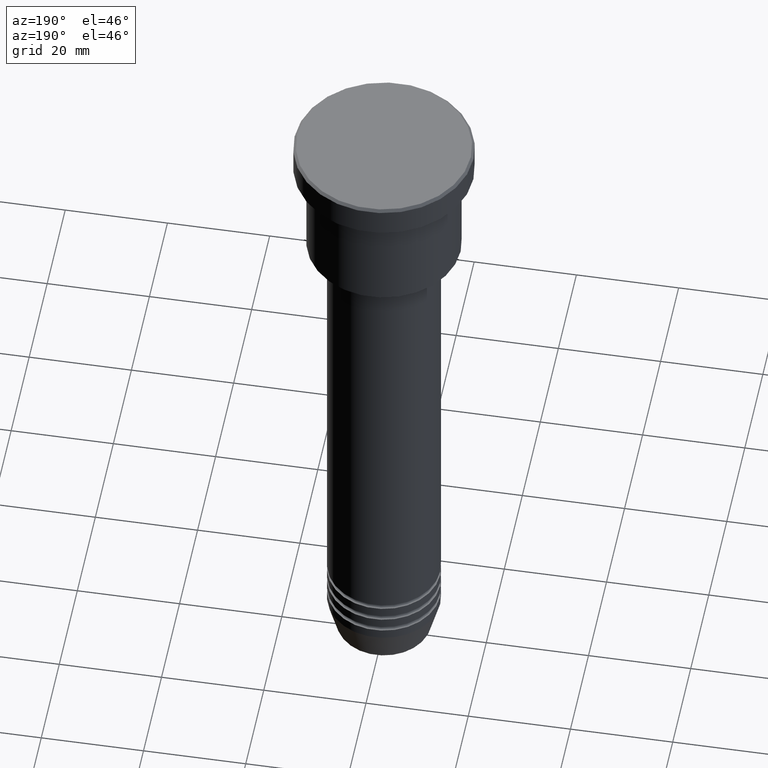
[diagram: clean part render]
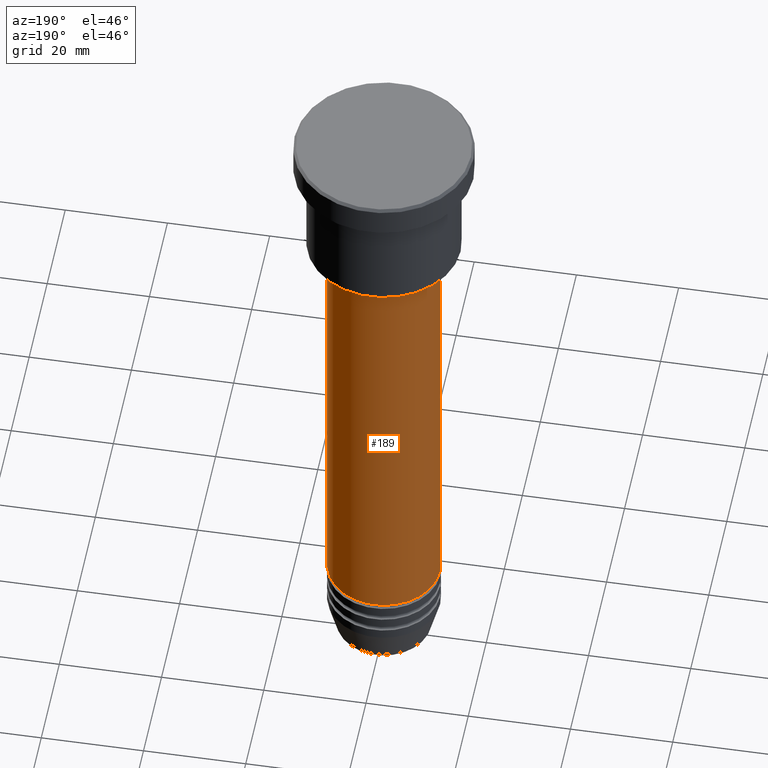
[diagram: same view with one face highlighted and labeled with its STEP entity id]
A machine part, auxiliary view. The second image highlights one B-rep face of the part: STEP entity #189.
In plain terms, the highlighted cylindrical surface (partial cylindrical patch) has radius 11 mm, axis along (-0, -0, 1).
Its self-contained STEP definition (entity closure, byte-faithful):
#55 = CARTESIAN_POINT ( 'NONE',  ( 0.000000000000000000, 0.000000000000000000, -115.9999999999999574 ) ) ;
#71 = DIRECTION ( 'NONE',  ( -0.000000000000000000, -0.000000000000000000, 1.000000000000000000 ) ) ;
#72 = VERTEX_POINT ( 'NONE', #715 ) ;
#90 = DIRECTION ( 'NONE',  ( -0.000000000000000000, -0.000000000000000000, 1.000000000000000000 ) ) ;
#189 = ADVANCED_FACE ( 'NONE', ( #913 ), #996, .T. ) ;
#201 = VERTEX_POINT ( 'NONE', #1088 ) ;
#225 = DIRECTION ( 'NONE',  ( 1.000000000000000000, 0.000000000000000000, 0.000000000000000000 ) ) ;
#307 = EDGE_CURVE ( 'NONE', #1180, #201, #904, .T. ) ;
#315 = CARTESIAN_POINT ( 'NONE',  ( -11.00000000000000000, 1.347111479062088405E-15, 0.000000000000000000 ) ) ;
#319 = EDGE_CURVE ( 'NONE', #535, #1180, #380, .T. ) ;
#380 = LINE ( 'NONE', #854, #1032 ) ;
#485 = EDGE_CURVE ( 'NONE', #72, #201, #790, .T. ) ;
#535 = VERTEX_POINT ( 'NONE', #706 ) ;
#682 = ORIENTED_EDGE ( 'NONE', *, *, #319, .F. ) ;
#690 = DIRECTION ( 'NONE',  ( 1.000000000000000000, 0.000000000000000000, 0.000000000000000000 ) ) ;
#706 = CARTESIAN_POINT ( 'NONE',  ( 11.00000000000000000, 0.000000000000000000, -115.9999999999999574 ) ) ;
#715 = CARTESIAN_POINT ( 'NONE',  ( -11.00000000000000000, 1.347111479062088405E-15, -115.9999999999999574 ) ) ;
#745 = EDGE_LOOP ( 'NONE', ( #1014, #1075, #758, #682 ) ) ;
#758 = ORIENTED_EDGE ( 'NONE', *, *, #307, .F. ) ;
#762 = DIRECTION ( 'NONE',  ( -0.000000000000000000, -0.000000000000000000, 1.000000000000000000 ) ) ;
#790 = LINE ( 'NONE', #315, #806 ) ;
#798 = CARTESIAN_POINT ( 'NONE',  ( 11.00000000000000000, 0.000000000000000000, -28.00000000000000355 ) ) ;
#806 = VECTOR ( 'NONE', #1047, 1000.000000000000000 ) ;
#809 = CARTESIAN_POINT ( 'NONE',  ( 0.000000000000000000, 0.000000000000000000, -28.00000000000000355 ) ) ;
#824 = AXIS2_PLACEMENT_3D ( 'NONE', #809, #762, #225 ) ;
#844 = DIRECTION ( 'NONE',  ( -0.000000000000000000, -0.000000000000000000, 1.000000000000000000 ) ) ;
#854 = CARTESIAN_POINT ( 'NONE',  ( 11.00000000000000000, 0.000000000000000000, 0.000000000000000000 ) ) ;
#865 = CIRCLE ( 'NONE', #1129, 11.00000000000000000 ) ;
#904 = CIRCLE ( 'NONE', #824, 11.00000000000000000 ) ;
#909 = DIRECTION ( 'NONE',  ( 1.000000000000000000, 0.000000000000000000, 0.000000000000000000 ) ) ;
#913 = FACE_OUTER_BOUND ( 'NONE', #745, .T. ) ;
#924 = CARTESIAN_POINT ( 'NONE',  ( 0.000000000000000000, 0.000000000000000000, 0.000000000000000000 ) ) ;
#996 = CYLINDRICAL_SURFACE ( 'NONE', #1165, 11.00000000000000000 ) ;
#1014 = ORIENTED_EDGE ( 'NONE', *, *, #1174, .T. ) ;
#1032 = VECTOR ( 'NONE', #844, 1000.000000000000000 ) ;
#1047 = DIRECTION ( 'NONE',  ( -0.000000000000000000, -0.000000000000000000, 1.000000000000000000 ) ) ;
#1075 = ORIENTED_EDGE ( 'NONE', *, *, #485, .T. ) ;
#1088 = CARTESIAN_POINT ( 'NONE',  ( -11.00000000000000000, 1.347111479062088405E-15, -28.00000000000000355 ) ) ;
#1129 = AXIS2_PLACEMENT_3D ( 'NONE', #55, #71, #690 ) ;
#1165 = AXIS2_PLACEMENT_3D ( 'NONE', #924, #90, #909 ) ;
#1174 = EDGE_CURVE ( 'NONE', #535, #72, #865, .T. ) ;
#1180 = VERTEX_POINT ( 'NONE', #798 ) ;